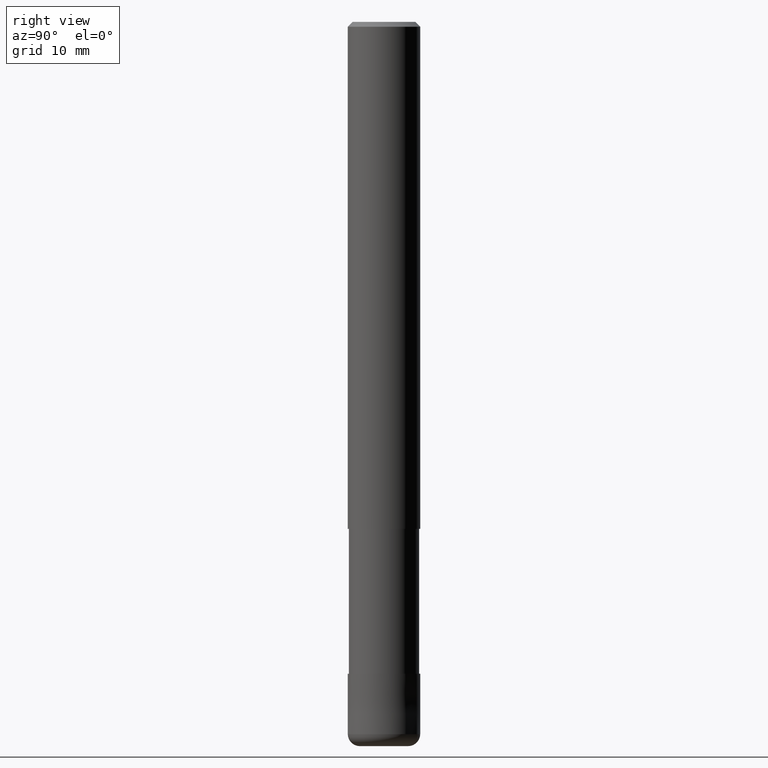
[diagram: clean part render]
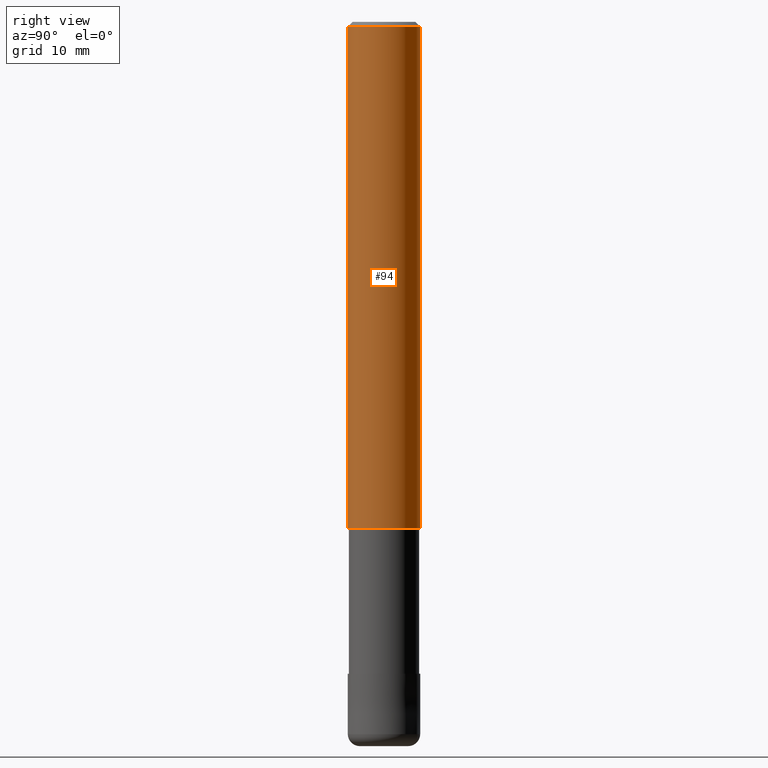
[diagram: same view with one face highlighted and labeled with its STEP entity id]
A machine part, right view. The second image highlights one B-rep face of the part: STEP entity #94.
In plain terms, the highlighted cylindrical surface (edge-blend (fillet) strip) has radius 3 mm, axis along (-0, -0, 1).
Its self-contained STEP definition (entity closure, byte-faithful):
#94=ADVANCED_FACE('',(#233),#234,.T.);
#116=EDGE_CURVE('',#186,#140,#259,.T.);
#120=EDGE_CURVE('',#144,#140,#264,.T.);
#128=VERTEX_POINT('',#272);
#140=VERTEX_POINT('',#284);
#144=VERTEX_POINT('',#288);
#168=EDGE_CURVE('',#144,#128,#318,.T.);
#186=VERTEX_POINT('',#337);
#200=EDGE_CURVE('',#128,#186,#352,.T.);
#233=FACE_OUTER_BOUND('',#378,.T.);
#234=CYLINDRICAL_SURFACE('',#379,3.0);
#259=LINE('',#410,#411);
#264=CIRCLE('',#417,3.0);
#272=CARTESIAN_POINT('',(0.0,3.0,-42.0));
#284=CARTESIAN_POINT('',(3.67381906146713E-016,-3.0,-0.399999999999999));
#288=CARTESIAN_POINT('',(0.0,3.0,-0.399999999999999));
#318=LINE('',#479,#480);
#337=CARTESIAN_POINT('',(3.67381906146713E-016,-3.0,-42.0));
#352=CIRCLE('',#528,3.0);
#378=EDGE_LOOP('',(#549,#550,#551,#552));
#379=AXIS2_PLACEMENT_3D('',#553,#554,#555);
#410=CARTESIAN_POINT('',(3.67381906146713E-016,-3.0,-21.2));
#411=VECTOR('',#590,1.0);
#417=AXIS2_PLACEMENT_3D('',#599,#600,#601);
#479=CARTESIAN_POINT('',(-3.67381906146713E-016,3.0,-21.2));
#480=VECTOR('',#664,1.0);
#528=AXIS2_PLACEMENT_3D('',#702,#703,#704);
#549=ORIENTED_EDGE('',*,*,#168,.F.);
#550=ORIENTED_EDGE('',*,*,#120,.T.);
#551=ORIENTED_EDGE('',*,*,#116,.F.);
#552=ORIENTED_EDGE('',*,*,#200,.F.);
#553=CARTESIAN_POINT('',(0.0,0.0,-21.2));
#554=DIRECTION('',(-0.0,-0.0,1.0));
#555=DIRECTION('',(0.0,1.0,0.0));
#590=DIRECTION('',(-0.0,-0.0,1.0));
#599=CARTESIAN_POINT('',(0.0,0.0,-0.399999999999999));
#600=DIRECTION('',(0.0,0.0,-1.0));
#601=DIRECTION('',(0.0,1.0,0.0));
#664=DIRECTION('',(0.0,0.0,-1.0));
#702=CARTESIAN_POINT('',(0.0,0.0,-42.0));
#703=DIRECTION('',(0.0,0.0,-1.0));
#704=DIRECTION('',(0.0,1.0,0.0));